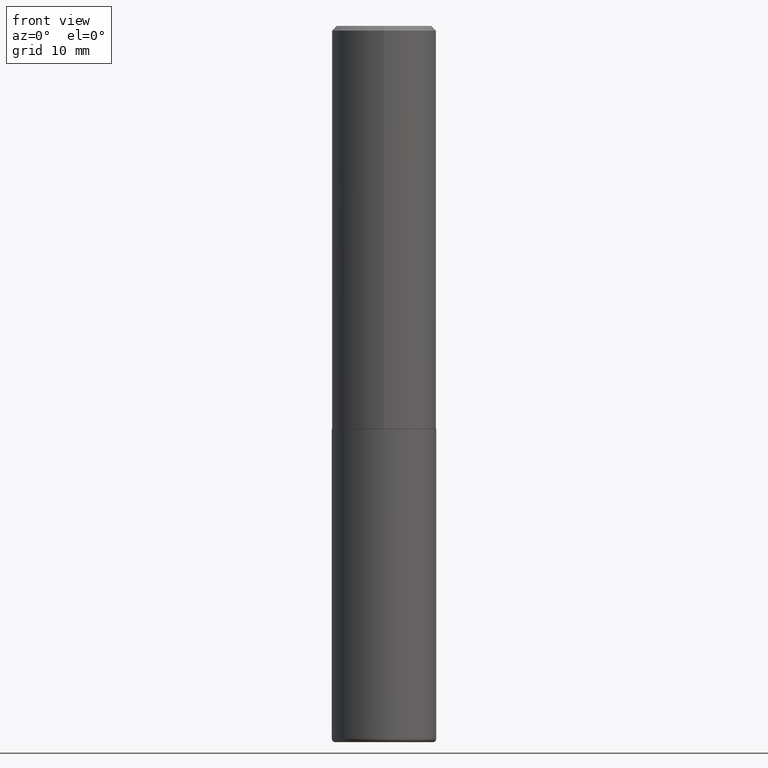
[diagram: clean part render]
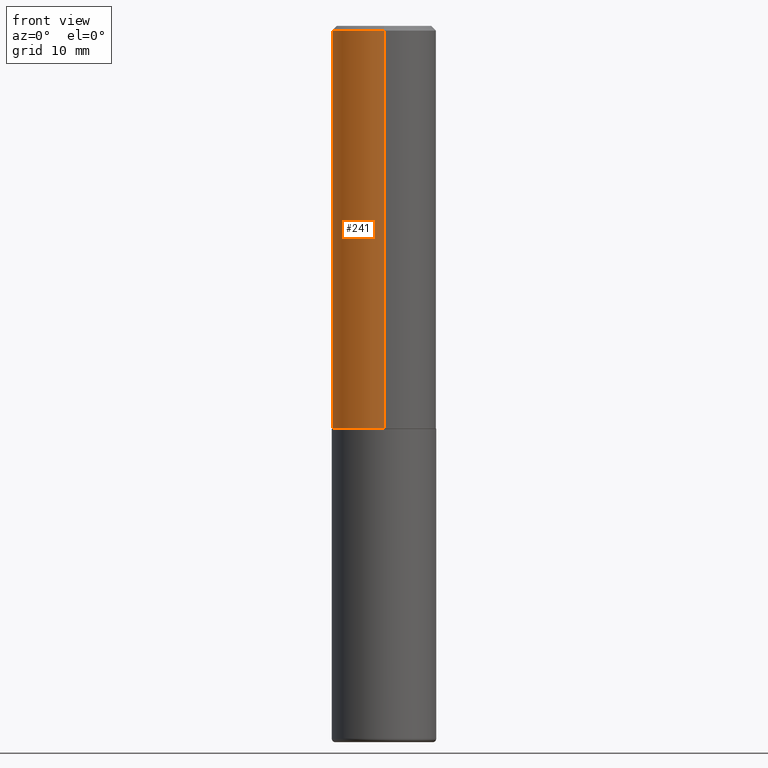
[diagram: same view with one face highlighted and labeled with its STEP entity id]
A machine part, front view. The second image highlights one B-rep face of the part: STEP entity #241.
In plain terms, the highlighted cylindrical surface (partial cylindrical patch) has radius 5.5563 mm, axis along (-0, 0, 1).
Its self-contained STEP definition (entity closure, byte-faithful):
#10 = CARTESIAN_POINT ( 'NONE',  ( -1.500733937012521346E-15, -0.2187500000000000278, -0.01999999999999928571 ) ) ;
#11 = CARTESIAN_POINT ( 'NONE',  ( 1.527523085743870843E-15, 0.2187499999999998890, -0.02000000000000081574 ) ) ;
#16 = CARTESIAN_POINT ( 'NONE',  ( -1.527523085743831005E-15, -0.2187500000000061062, -1.686499999999999444 ) ) ;
#33 = EDGE_CURVE ( 'NONE', #82, #346, #392, .T. ) ;
#37 = DIRECTION ( 'NONE',  ( -2.445054220858351343E-29, 3.492075048627833097E-15, 1.000000000000000000 ) ) ;
#41 = EDGE_CURVE ( 'NONE', #157, #414, #361, .T. ) ;
#54 = ORIENTED_EDGE ( 'NONE', *, *, #118, .F. ) ;
#60 = DIRECTION ( 'NONE',  ( -2.445054220858351343E-29, 3.492075048627833097E-15, 1.000000000000000000 ) ) ;
#73 = DIRECTION ( 'NONE',  ( -6.982962677686265922E-15, -1.000000000000000000, 3.746534391310985612E-15 ) ) ;
#82 = VERTEX_POINT ( 'NONE', #135 ) ;
#90 = VECTOR ( 'NONE', #60, 39.37007874015748143 ) ;
#112 = CARTESIAN_POINT ( 'NONE',  ( 4.123583943477609610E-29, -5.889384569510841777E-15, -1.686500000000000110 ) ) ;
#113 = AXIS2_PLACEMENT_3D ( 'NONE', #112, #149, #73 ) ;
#118 = EDGE_CURVE ( 'NONE', #346, #414, #151, .T. ) ;
#122 = CIRCLE ( 'NONE', #113, 0.2187500000000002220 ) ;
#135 = CARTESIAN_POINT ( 'NONE',  ( 1.554312234475240653E-15, 0.2187499999999943101, -1.686500000000000998 ) ) ;
#144 = DIRECTION ( 'NONE',  ( -6.982962677686265922E-15, -1.000000000000000000, 3.492075048627833097E-15 ) ) ;
#149 = DIRECTION ( 'NONE',  ( -2.445054220858351343E-29, 3.492075048627833097E-15, 1.000000000000000000 ) ) ;
#151 = CIRCLE ( 'NONE', #165, 0.2187499999999999445 ) ;
#157 = VERTEX_POINT ( 'NONE', #16 ) ;
#165 = AXIS2_PLACEMENT_3D ( 'NONE', #417, #37, #228 ) ;
#168 = EDGE_CURVE ( 'NONE', #82, #157, #122, .T. ) ;
#171 = CARTESIAN_POINT ( 'NONE',  ( 1.554312234475219551E-15, 0.2187500000000000833, -7.638914168873387857E-16 ) ) ;
#187 = AXIS2_PLACEMENT_3D ( 'NONE', #296, #300, #144 ) ;
#201 = CARTESIAN_POINT ( 'NONE',  ( -1.527523085743871237E-15, -0.2187500000000000833, 7.638914168873387857E-16 ) ) ;
#228 = DIRECTION ( 'NONE',  ( -6.982962677686265922E-15, -1.000000000000000000, 3.492862791899308860E-15 ) ) ;
#231 = ORIENTED_EDGE ( 'NONE', *, *, #33, .F. ) ;
#241 = ADVANCED_FACE ( 'NONE', ( #268 ), #397, .T. ) ;
#263 = EDGE_LOOP ( 'NONE', ( #231, #327, #318, #54 ) ) ;
#268 = FACE_OUTER_BOUND ( 'NONE', #263, .T. ) ;
#296 = CARTESIAN_POINT ( 'NONE',  ( 0.000000000000000000, 0.000000000000000000, 0.000000000000000000 ) ) ;
#300 = DIRECTION ( 'NONE',  ( -2.445054220858351343E-29, 3.492075048627833097E-15, 1.000000000000000000 ) ) ;
#318 = ORIENTED_EDGE ( 'NONE', *, *, #41, .T. ) ;
#327 = ORIENTED_EDGE ( 'NONE', *, *, #168, .T. ) ;
#346 = VERTEX_POINT ( 'NONE', #11 ) ;
#361 = LINE ( 'NONE', #201, #408 ) ;
#385 = DIRECTION ( 'NONE',  ( -2.445054220858351343E-29, 3.492075048627833097E-15, 1.000000000000000000 ) ) ;
#392 = LINE ( 'NONE', #171, #90 ) ;
#397 = CYLINDRICAL_SURFACE ( 'NONE', #187, 0.2187500000000000833 ) ;
#408 = VECTOR ( 'NONE', #385, 39.37007874015748143 ) ;
#414 = VERTEX_POINT ( 'NONE', #10 ) ;
#417 = CARTESIAN_POINT ( 'NONE',  ( 4.890108441716715262E-31, -6.984150097255683598E-17, -0.02000000000000005246 ) ) ;